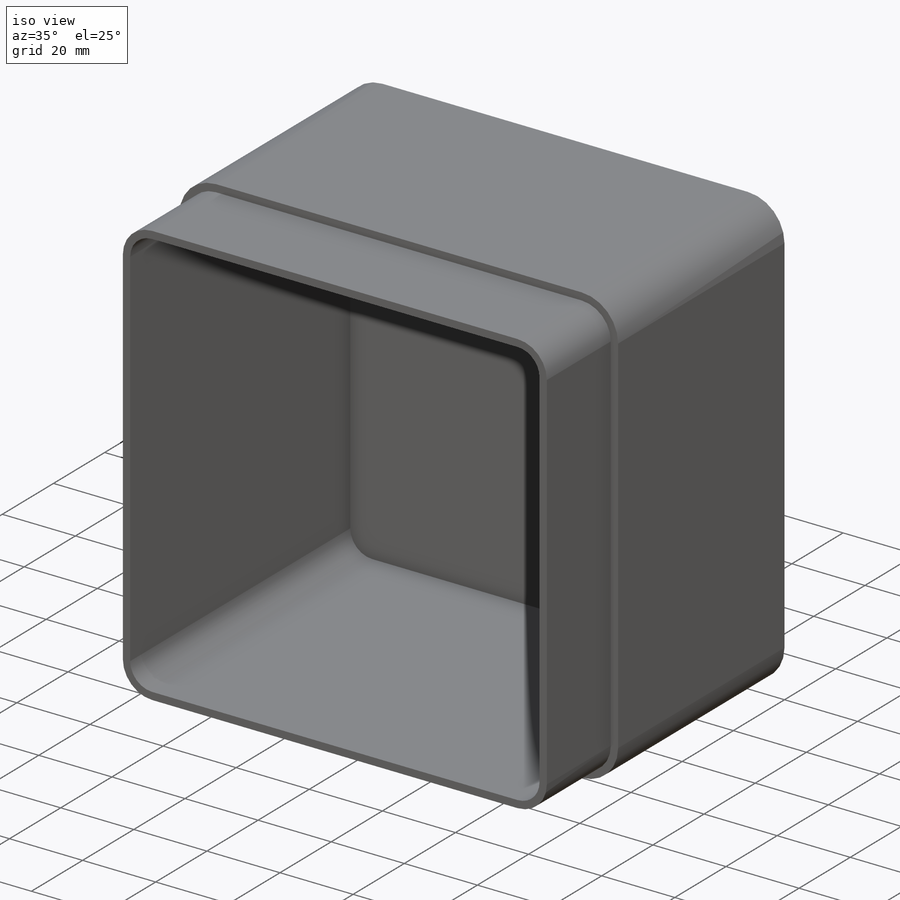
[diagram: iso view]
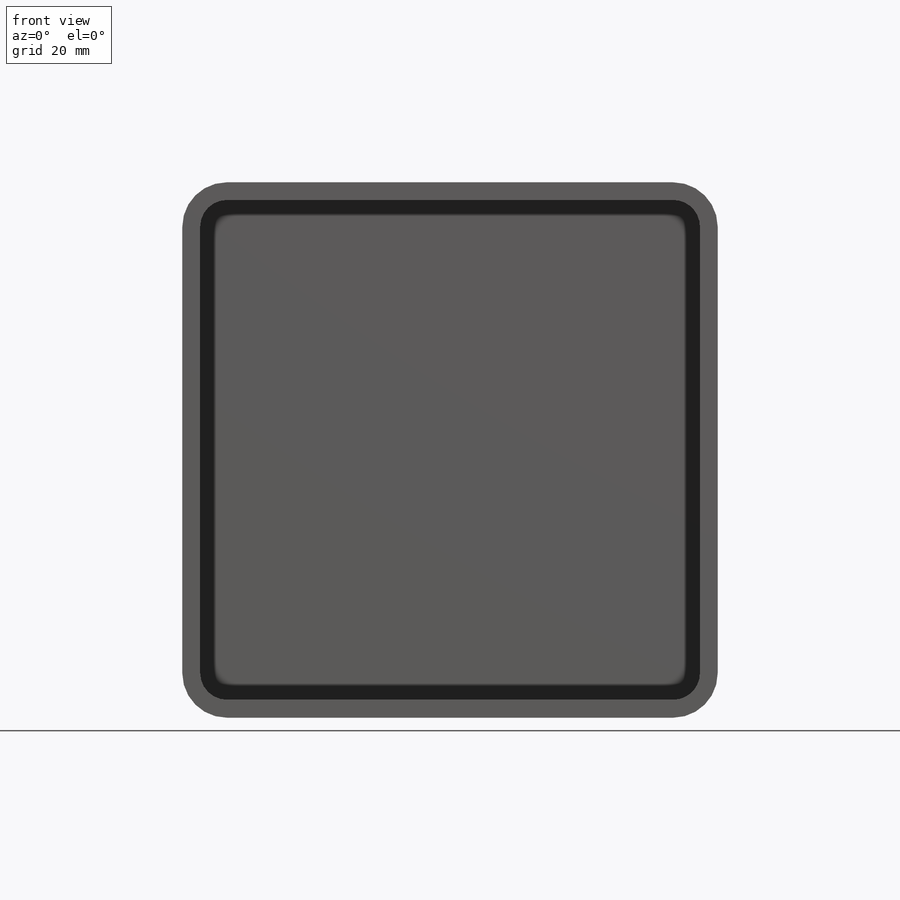
[diagram: front view]
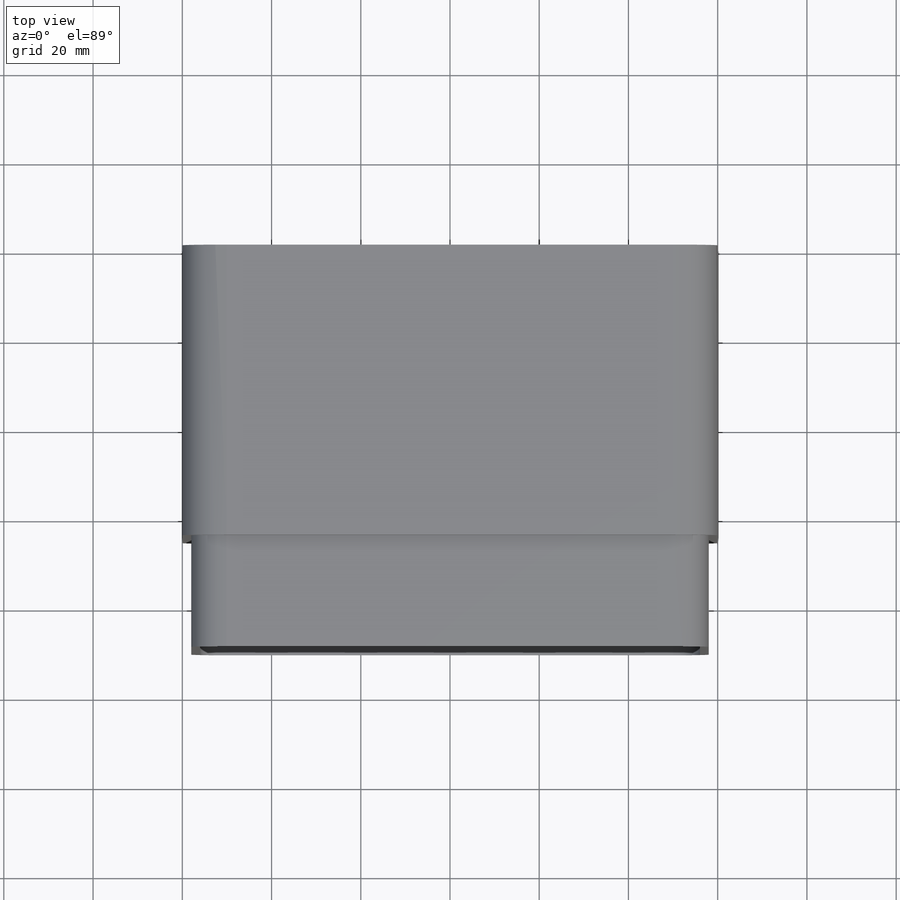
[diagram: top view]
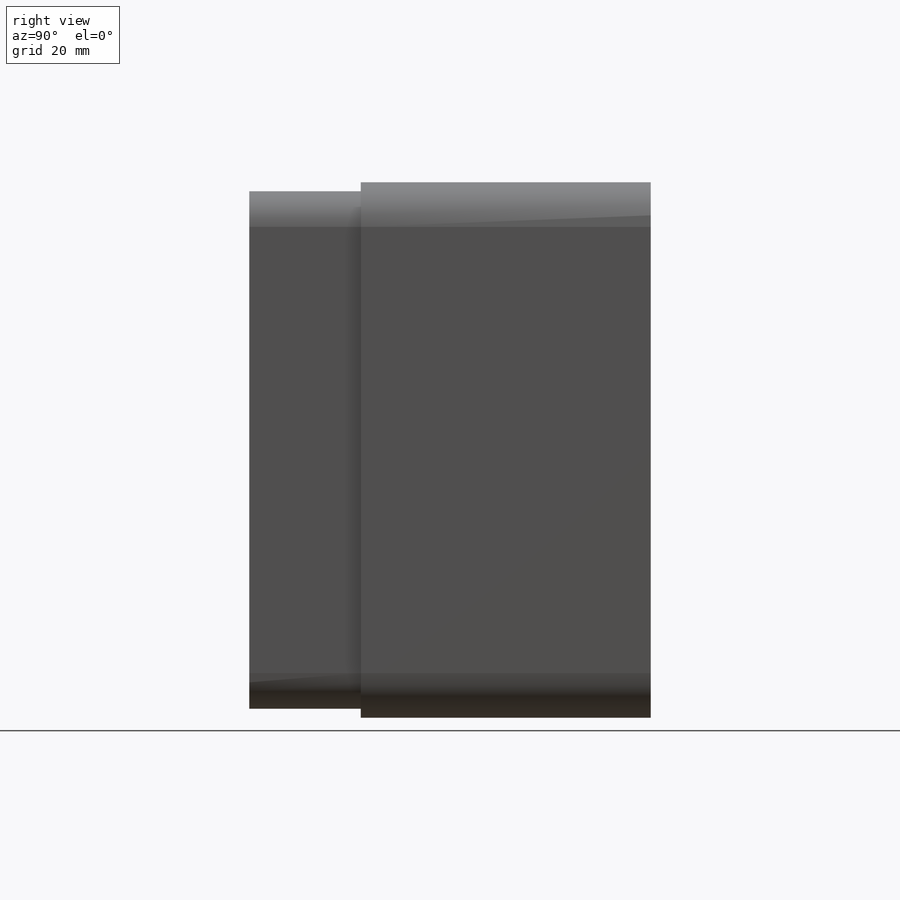
[diagram: right view]
SOLIDWORKS PART (.sldprt)
format: sldprt  version: not decoded by parser v0  size: 199,168 bytes
history: native  units: mm
features: sketch x2, material x1, extrude x1, fillet x1, shell x1, cut_extrude x1 (+16 scaffold rows collapsed)
feature tree (23):
  scaffold x16  (default folders/planes/origin — collapsed)
  material  "Material <sin especificar>"
  sketch  "Croquis1"  dims[D1=120.0mm D2=120.0mm]
  extrude  "Saliente-Extruir1"  Depth=90mm
  fillet  "Redondeo2"  Radius=10mm
  shell  "Vaciado1"  Thickness=4mm
  sketch  "Croquis6"  dims[D1=2.0mm]
  cut_extrude  "Cortar-Extruir2"  Depth=25mm
decode coverage: 6 of 6 modeling features carry decoded parameters
note: suppression state not decoded; provenance and decode notes live in map.json
